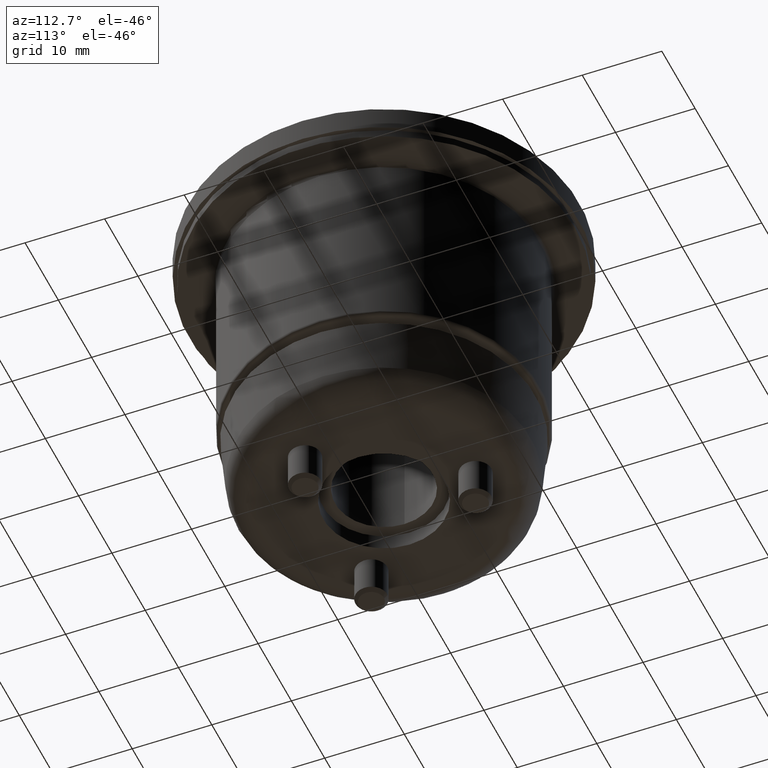
[diagram: clean part render]
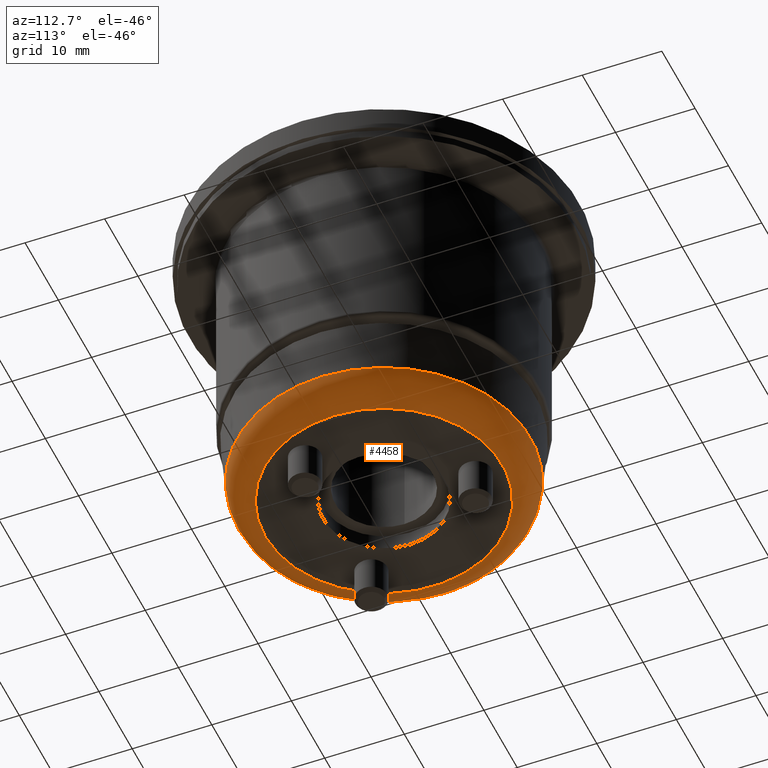
[diagram: same view with one face highlighted and labeled with its STEP entity id]
A machine part, auxiliary view. The second image highlights one B-rep face of the part: STEP entity #4458.
In plain terms, the highlighted toroidal blend (fillet) surface has major radius 14.9247 mm and minor (blend) radius 3.5 mm.
Its self-contained STEP definition (entity closure, byte-faithful):
#1396=FACE_OUTER_BOUND('',#1674,.T.);
#1674=EDGE_LOOP('',(#4094,#4095,#4096,#4097,#4098,#4099,#4100));
#1809=CIRCLE('',#4835,18.4113915369259);
#1810=CIRCLE('',#4836,3.5);
#1811=CIRCLE('',#4837,14.9247100936048);
#1812=CIRCLE('',#4838,14.9247100936048);
#1813=CIRCLE('',#4839,18.4113915369259);
#1814=CIRCLE('',#4840,18.4113915369259);
#2241=VERTEX_POINT('',#8099);
#2242=VERTEX_POINT('',#8100);
#2243=VERTEX_POINT('',#8102);
#2244=VERTEX_POINT('',#8104);
#2245=VERTEX_POINT('',#8107);
#2870=EDGE_CURVE('',#2241,#2242,#1809,.T.);
#2871=EDGE_CURVE('',#2242,#2243,#1810,.T.);
#2872=EDGE_CURVE('',#2243,#2244,#1811,.T.);
#2873=EDGE_CURVE('',#2244,#2243,#1812,.T.);
#2874=EDGE_CURVE('',#2242,#2245,#1813,.T.);
#2875=EDGE_CURVE('',#2245,#2241,#1814,.T.);
#4094=ORIENTED_EDGE('',*,*,#2870,.T.);
#4095=ORIENTED_EDGE('',*,*,#2871,.T.);
#4096=ORIENTED_EDGE('',*,*,#2872,.T.);
#4097=ORIENTED_EDGE('',*,*,#2873,.T.);
#4098=ORIENTED_EDGE('',*,*,#2871,.F.);
#4099=ORIENTED_EDGE('',*,*,#2874,.T.);
#4100=ORIENTED_EDGE('',*,*,#2875,.T.);
#4243=TOROIDAL_SURFACE('',#4834,14.9247100936048,3.5);
#4458=ADVANCED_FACE('',(#1396),#4243,.T.);
#4834=AXIS2_PLACEMENT_3D('',#8098,#5710,#5711);
#4835=AXIS2_PLACEMENT_3D('',#8101,#5712,#5713);
#4836=AXIS2_PLACEMENT_3D('',#8103,#5714,#5715);
#4837=AXIS2_PLACEMENT_3D('',#8105,#5716,#5717);
#4838=AXIS2_PLACEMENT_3D('',#8106,#5718,#5719);
#4839=AXIS2_PLACEMENT_3D('',#8108,#5720,#5721);
#4840=AXIS2_PLACEMENT_3D('',#8109,#5722,#5723);
#5710=DIRECTION('center_axis',(0.,1.,0.));
#5711=DIRECTION('ref_axis',(0.,0.,1.));
#5712=DIRECTION('center_axis',(0.,-1.,0.));
#5713=DIRECTION('ref_axis',(1.,0.,0.));
#5714=DIRECTION('center_axis',(-1.,0.,2.41029143793262E-16));
#5715=DIRECTION('ref_axis',(-2.41029143793262E-16,0.,-1.));
#5716=DIRECTION('center_axis',(0.,1.,0.));
#5717=DIRECTION('ref_axis',(1.,0.,1.22464679914735E-16));
#5718=DIRECTION('center_axis',(0.,1.,0.));
#5719=DIRECTION('ref_axis',(1.,0.,1.22464679914735E-16));
#5720=DIRECTION('center_axis',(0.,-1.,0.));
#5721=DIRECTION('ref_axis',(1.,0.,0.));
#5722=DIRECTION('center_axis',(0.,-1.,0.));
#5723=DIRECTION('ref_axis',(1.,0.,0.));
#8098=CARTESIAN_POINT('Origin',(-39.45,1.5,0.));
#8099=CARTESIAN_POINT('',(-57.8613915369259,1.1949549003832,-4.50949034270899E-15));
#8100=CARTESIAN_POINT('',(-39.45,1.1949549003832,-18.4113915369259));
#8101=CARTESIAN_POINT('Origin',(-39.45,1.1949549003832,-2.2547451713545E-15));
#8102=CARTESIAN_POINT('',(-39.45,-2.,-14.9247100936048));
#8103=CARTESIAN_POINT('Origin',(-39.45,1.5,-14.9247100936048));
#8104=CARTESIAN_POINT('',(-54.3747100936048,-2.,0.));
#8105=CARTESIAN_POINT('Origin',(-39.45,-2.,0.));
#8106=CARTESIAN_POINT('Origin',(-39.45,-2.,0.));
#8107=CARTESIAN_POINT('',(-21.0386084630741,1.1949549003832,-2.2547451713545E-15));
#8108=CARTESIAN_POINT('Origin',(-39.45,1.1949549003832,-2.2547451713545E-15));
#8109=CARTESIAN_POINT('Origin',(-39.45,1.1949549003832,-2.2547451713545E-15));